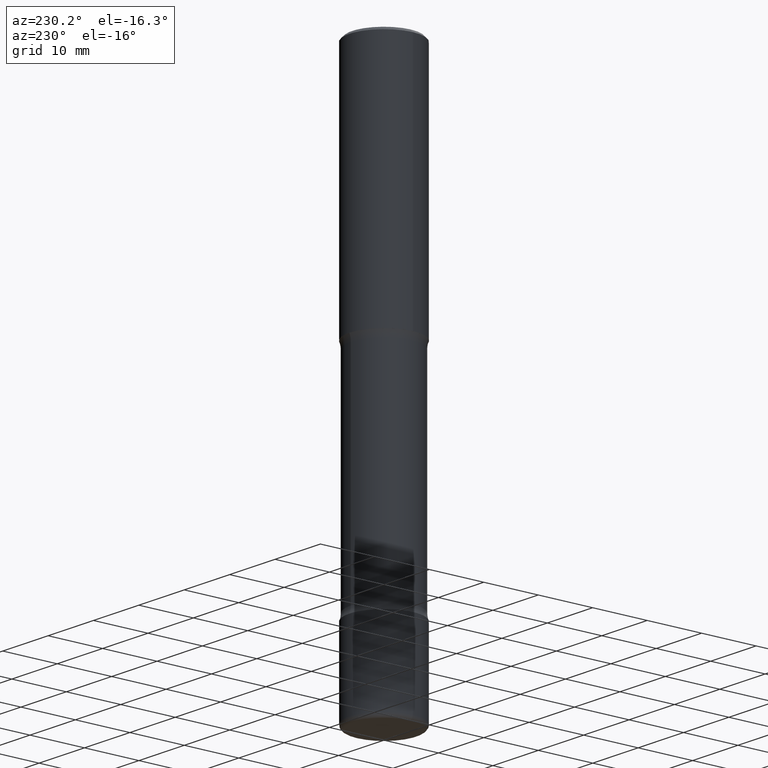
[diagram: clean part render]
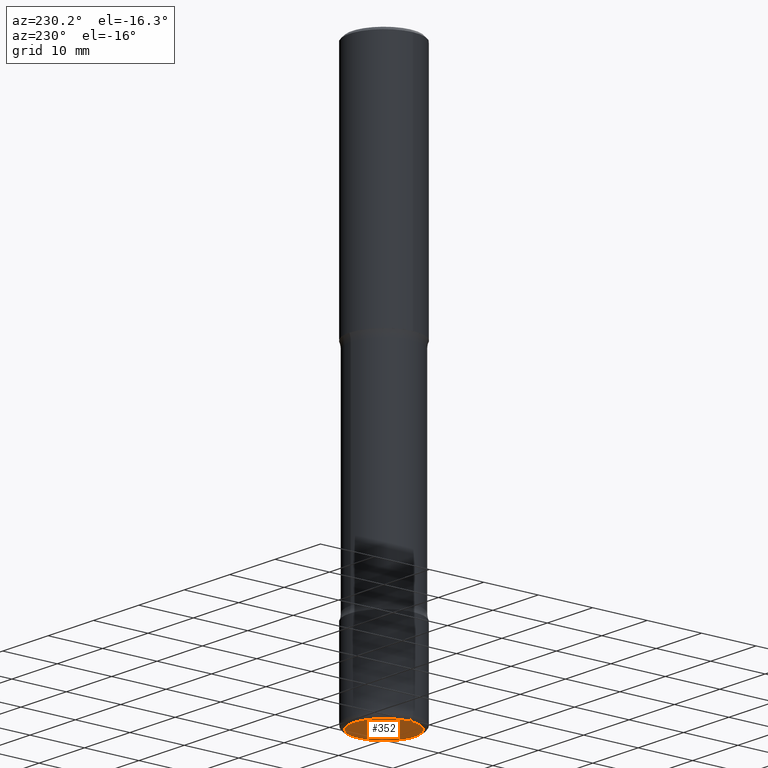
[diagram: same view with one face highlighted and labeled with its STEP entity id]
A machine part, auxiliary view. The second image highlights one B-rep face of the part: STEP entity #352.
In plain terms, the highlighted planar face has unit normal (0, -0, -1).
Its self-contained STEP definition (entity closure, byte-faithful):
#1 = CIRCLE ( 'NONE', #535, 0.2200000000000003619 ) ;
#6 = EDGE_LOOP ( 'NONE', ( #421, #279 ) ) ;
#19 = DIRECTION ( 'NONE',  ( 2.438088387897960049E-29, -3.491481338843145188E-15, -1.000000000000000000 ) ) ;
#65 = DIRECTION ( 'NONE',  ( -1.000000000000000000, 6.982962677686265922E-15, -4.876176775795935793E-29 ) ) ;
#111 = PLANE ( 'NONE',  #484 ) ;
#161 = FACE_OUTER_BOUND ( 'NONE', #6, .T. ) ;
#165 = DIRECTION ( 'NONE',  ( -2.445468806185136597E-29, 3.491481338843145583E-15, 1.000000000000000000 ) ) ;
#204 = CIRCLE ( 'NONE', #243, 0.2200000000000003619 ) ;
#207 = CARTESIAN_POINT ( 'NONE',  ( 9.781875224740546387E-29, -1.396592535537258233E-14, -4.000000000000000000 ) ) ;
#243 = AXIS2_PLACEMENT_3D ( 'NONE', #207, #165, #336 ) ;
#246 = CARTESIAN_POINT ( 'NONE',  ( 0.2200000000000003619, -1.550217714446356385E-14, -4.000000000000000000 ) ) ;
#279 = ORIENTED_EDGE ( 'NONE', *, *, #553, .F. ) ;
#280 = CARTESIAN_POINT ( 'NONE',  ( -0.2200000000000003619, -1.224377770625369636E-14, -4.000000000000000000 ) ) ;
#328 = VERTEX_POINT ( 'NONE', #280 ) ;
#336 = DIRECTION ( 'NONE',  ( 1.000000000000000000, -6.982962677686268288E-15, 0.000000000000000000 ) ) ;
#352 = ADVANCED_FACE ( 'NONE', ( #161 ), #111, .T. ) ;
#372 = EDGE_CURVE ( 'NONE', #412, #328, #1, .T. ) ;
#373 = CARTESIAN_POINT ( 'NONE',  ( -4.091864834073704698E-29, -3.383391076383988679E-14, -3.999999999999999556 ) ) ;
#375 = CARTESIAN_POINT ( 'NONE',  ( 9.781875224740546387E-29, -1.396592535537258233E-14, -4.000000000000000000 ) ) ;
#412 = VERTEX_POINT ( 'NONE', #246 ) ;
#421 = ORIENTED_EDGE ( 'NONE', *, *, #372, .F. ) ;
#484 = AXIS2_PLACEMENT_3D ( 'NONE', #373, #19, #65 ) ;
#497 = DIRECTION ( 'NONE',  ( 1.000000000000000000, -6.982962677686268288E-15, 0.000000000000000000 ) ) ;
#500 = DIRECTION ( 'NONE',  ( -2.445468806185136597E-29, 3.491481338843145583E-15, 1.000000000000000000 ) ) ;
#535 = AXIS2_PLACEMENT_3D ( 'NONE', #375, #500, #497 ) ;
#553 = EDGE_CURVE ( 'NONE', #328, #412, #204, .T. ) ;